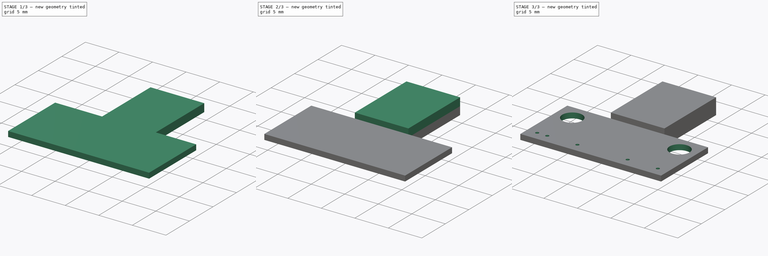
[diagram: build sequence overview — one tinted view per stage of 3, left to right]
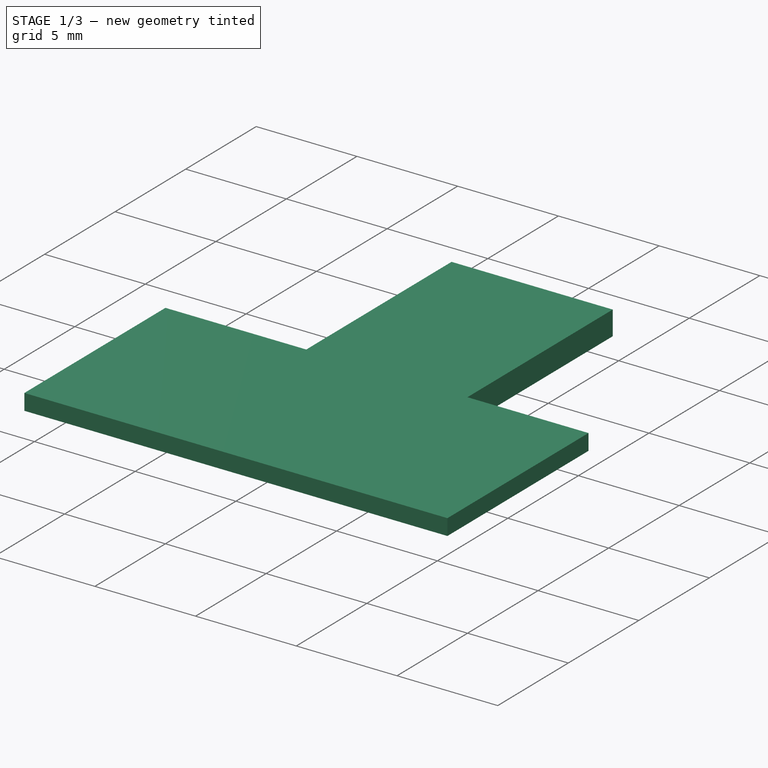
[diagram: stage 1 of 3 — iso view after this stage's code; geometry added in this stage tinted green]
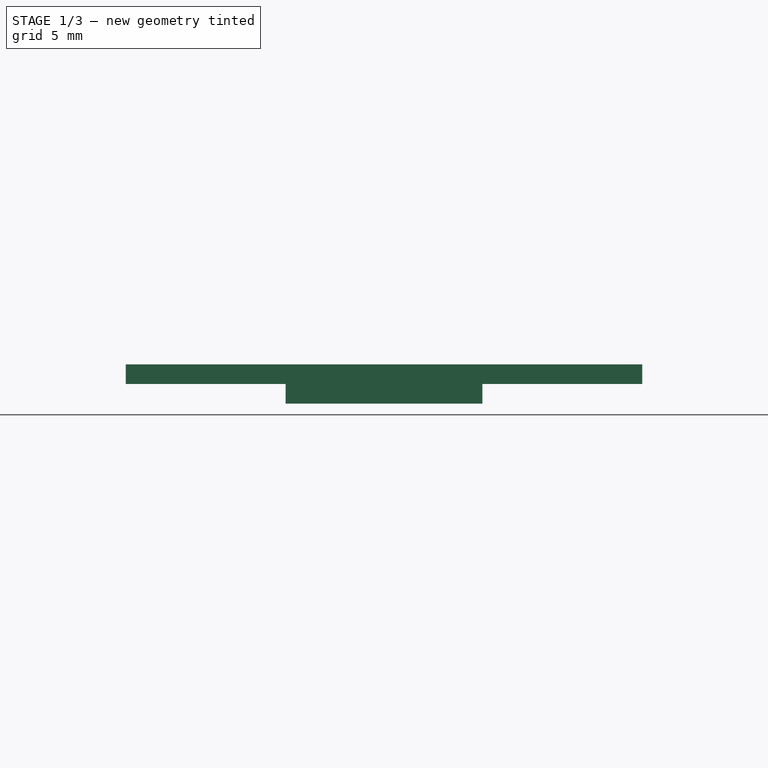
[diagram: stage 1 of 3 — front view after this stage's code; geometry added in this stage tinted green]
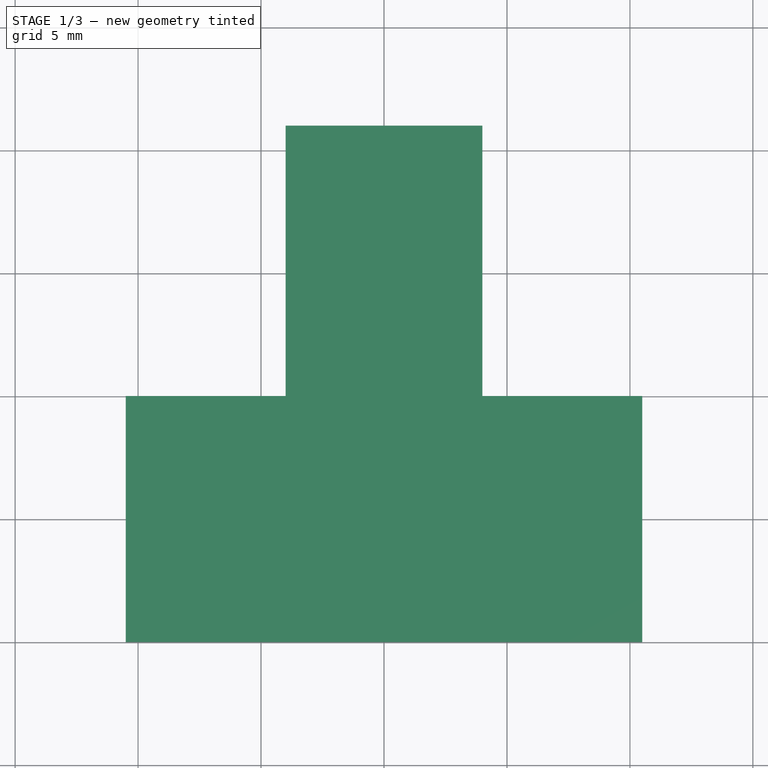
[diagram: stage 1 of 3 — top view after this stage's code; geometry added in this stage tinted green]
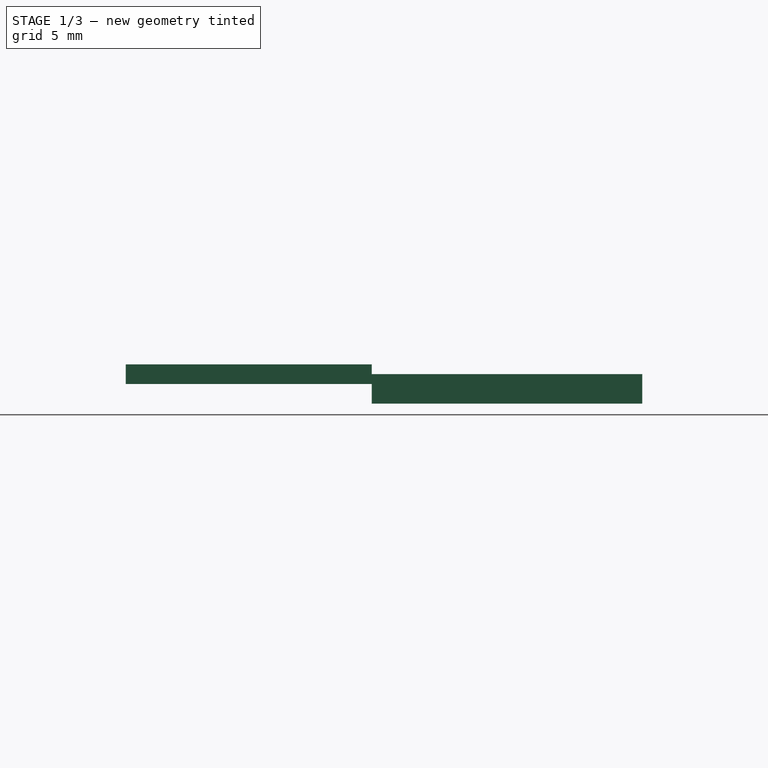
[diagram: stage 1 of 3 — right view after this stage's code; geometry added in this stage tinted green]
FCSTD DOCUMENT  (FreeCAD 0.19R24276 (Git))
Label: pcb_usb_c
License: All rights reserved
LicenseURL: http://en.wikipedia.org/wiki/All_rights_reserved
objects: Sketcher::SketchObject×5, PartDesign::Pad×3, PartDesign::Pocket×1, PartDesign::Hole×1, PartDesign::Body×1
note: 16 computed .brp shape members not serialized (recipe doc carries the construction recipe); baked Part::Feature solids carry a one-line shape summary decoded from their .brp

FEATURE [Sketcher::SketchObject] Sketch  label="pcb"
  FullyConstrained = true
  MapMode = 5
  Support = -> [XY_Plane]
  sketch-geometry (4):
    g0: LineSegment StartX=-10.5 StartY=5 StartZ=0 EndX=10.5 EndY=5 EndZ=0
    g1: LineSegment StartX=10.5 StartY=5 StartZ=0 EndX=10.5 EndY=-5 EndZ=0
    g2: LineSegment StartX=10.5 StartY=-5 StartZ=0 EndX=-10.5 EndY=-5 EndZ=0
    g3: LineSegment StartX=-10.5 StartY=-5 StartZ=0 EndX=-10.5 EndY=5 EndZ=0
  constraints (12):
    c: Coincident(g0,g1)
    c: Coincident(g1,g2)
    c: Coincident(g2,g3)
    c: Coincident(g3,g0)
    c: Horizontal(g0)
    c: Horizontal(g2)
    c: Vertical(g1)
    c: Vertical(g3)
    c: DistanceX(g-1,g0) = 10.5
    c: DistanceX(g0,g-1) = 10.5
    c: DistanceY(g-1,g0) = 5
    c: DistanceY(g2,g-1) = 5
FEATURE [PartDesign::Pad] Pad  label="plane_pad"
  Direction = (1,1,1)
  Length = 0.8
  Length2 = 100
  Profile = -> Sketch
  Type = 0
FEATURE [Sketcher::SketchObject] Sketch001  label="connector_usb_c_bottom"
  FullyConstrained = true
  MapMode = 5
  Placement = pos=(0,5,0) rot=(0,0.707107,0.707107;3.14159rad)
  Support = -> [Pad]
  sketch-geometry (4):
    g0: LineSegment StartX=-4 StartY=0.4 StartZ=0 EndX=4 EndY=0.4 EndZ=0
    g1: LineSegment StartX=4 StartY=0.4 StartZ=0 EndX=4 EndY=-0.8 EndZ=0
    g2: LineSegment StartX=4 StartY=-0.8 StartZ=0 EndX=-4 EndY=-0.8 EndZ=0
    g3: LineSegment StartX=-4 StartY=-0.8 StartZ=0 EndX=-4 EndY=0.4 EndZ=0
  constraints (12):
    c: Coincident(g0,g1)
    c: Coincident(g1,g2)
    c: Coincident(g2,g3)
    c: Coincident(g3,g0)
    c: Horizontal(g0)
    c: Horizontal(g2)
    c: Vertical(g1)
    c: Vertical(g3)
    c: DistanceY(g2,g-1) = 0.8
    c: DistanceY(g-1,g0) = 0.4
    c: DistanceX(g-1,g1) = 4
    c: DistanceX(g2,g-1) = 4
FEATURE [PartDesign::Pad] Pad001  label="connector_usb_c_bottom_pad"
  BaseFeature = -> Pad
  Direction = (1,1,1)
  Length = 11
  Length2 = 100
  Profile = -> Sketch001
  Type = 0
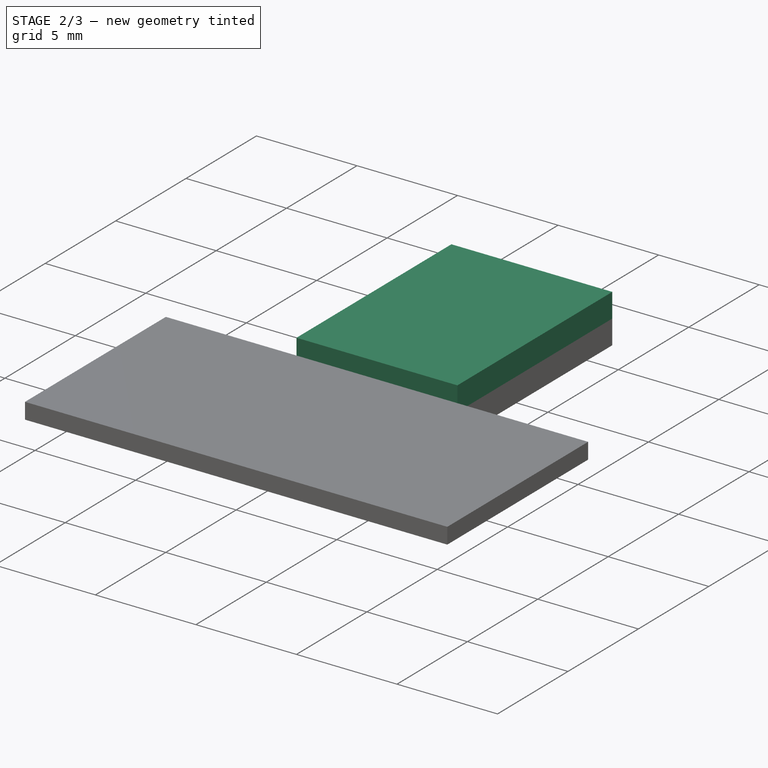
[diagram: stage 2 of 3 — iso view after this stage's code; geometry added in this stage tinted green]
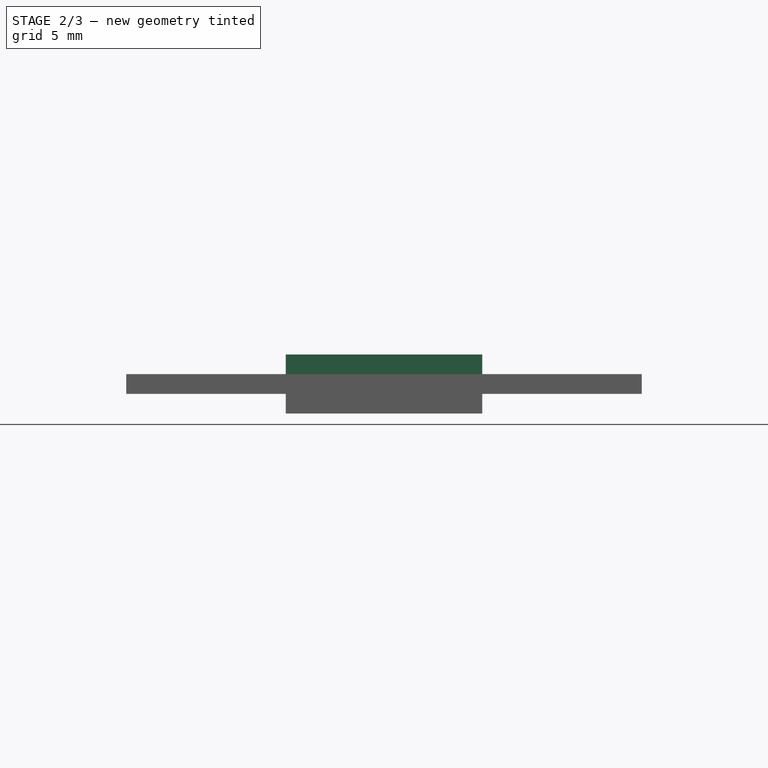
[diagram: stage 2 of 3 — front view after this stage's code; geometry added in this stage tinted green]
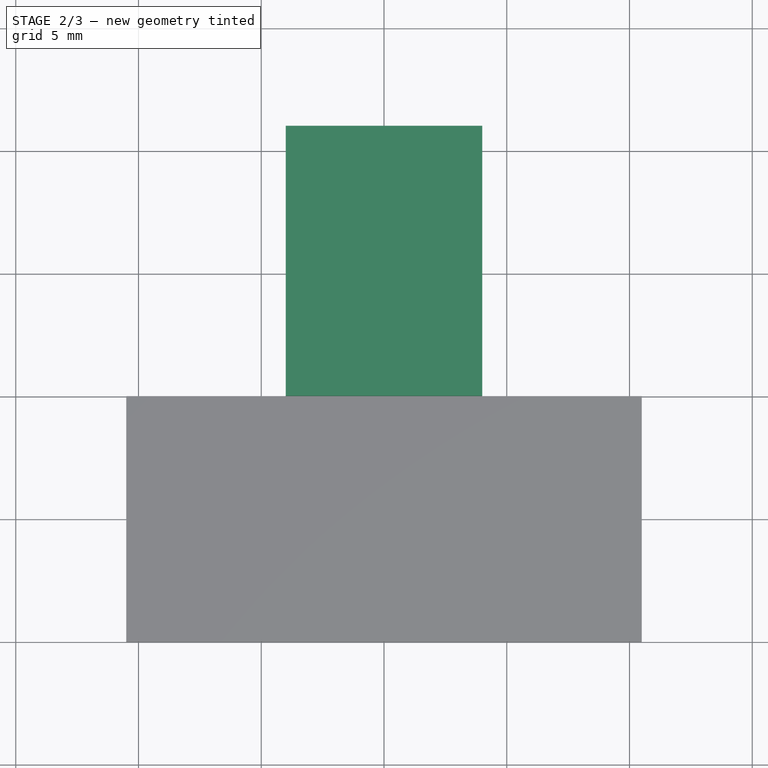
[diagram: stage 2 of 3 — top view after this stage's code; geometry added in this stage tinted green]
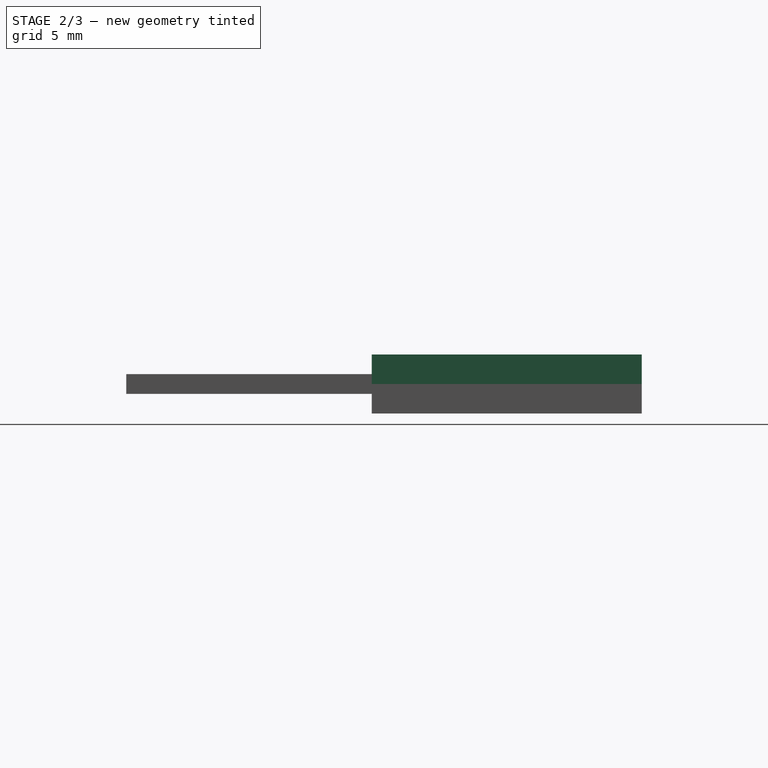
[diagram: stage 2 of 3 — right view after this stage's code; geometry added in this stage tinted green]
FEATURE [Sketcher::SketchObject] Sketch002  label="connector_usb_c_top"
  FullyConstrained = true
  MapMode = 5
  Placement = pos=(0,5,0) rot=(0,0.707107,0.707107;3.14159rad)
  Support = -> [Pad001]
  sketch-geometry (4):
    g0: LineSegment StartX=-4 StartY=1.6 StartZ=0 EndX=4 EndY=1.6 EndZ=0
    g1: LineSegment StartX=4 StartY=1.6 StartZ=0 EndX=4 EndY=0.4 EndZ=0
    g2: LineSegment StartX=4 StartY=0.4 StartZ=0 EndX=-4 EndY=0.4 EndZ=0
    g3: LineSegment StartX=-4 StartY=0.4 StartZ=0 EndX=-4 EndY=1.6 EndZ=0
  constraints (12):
    c: Coincident(g0,g1)
    c: Coincident(g1,g2)
    c: Coincident(g2,g3)
    c: Coincident(g3,g0)
    c: Horizontal(g0)
    c: Horizontal(g2)
    c: Vertical(g1)
    c: Vertical(g3)
    c: DistanceY(g-1,g2) = 0.4
    c: DistanceX(g0,g-1) = 4
    c: DistanceX(g-1,g0) = 4
    c: DistanceY(g3,g3) = 1.2
FEATURE [PartDesign::Pad] Pad002  label="connector_usb_c_top_pad"
  BaseFeature = -> Pad001
  Direction = (1,1,1)
  Length = 11
  Length2 = 100
  Profile = -> Sketch002
  Type = 0
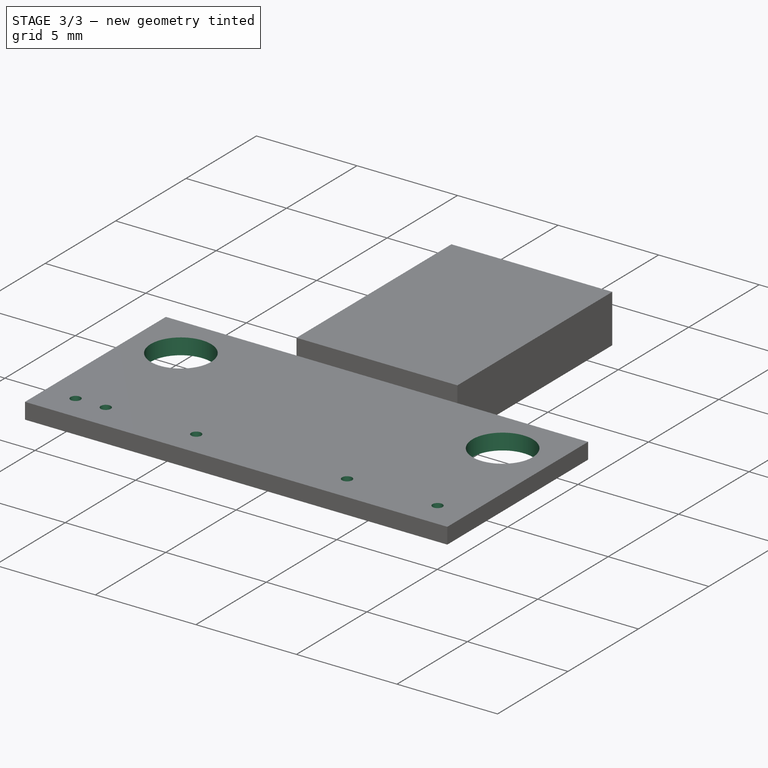
[diagram: stage 3 of 3 — iso view after this stage's code; geometry added in this stage tinted green]
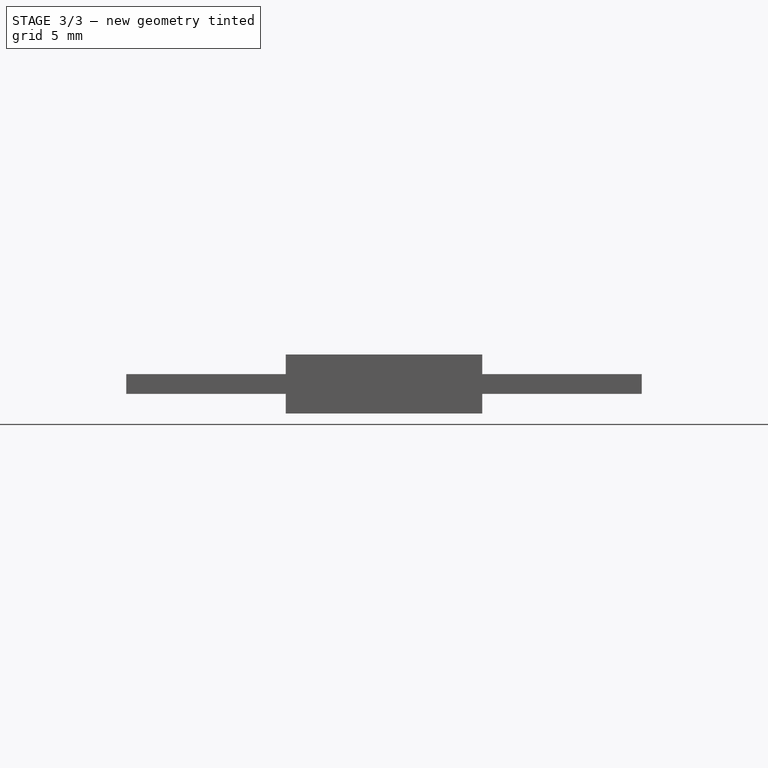
[diagram: stage 3 of 3 — front view after this stage's code; geometry added in this stage tinted green]
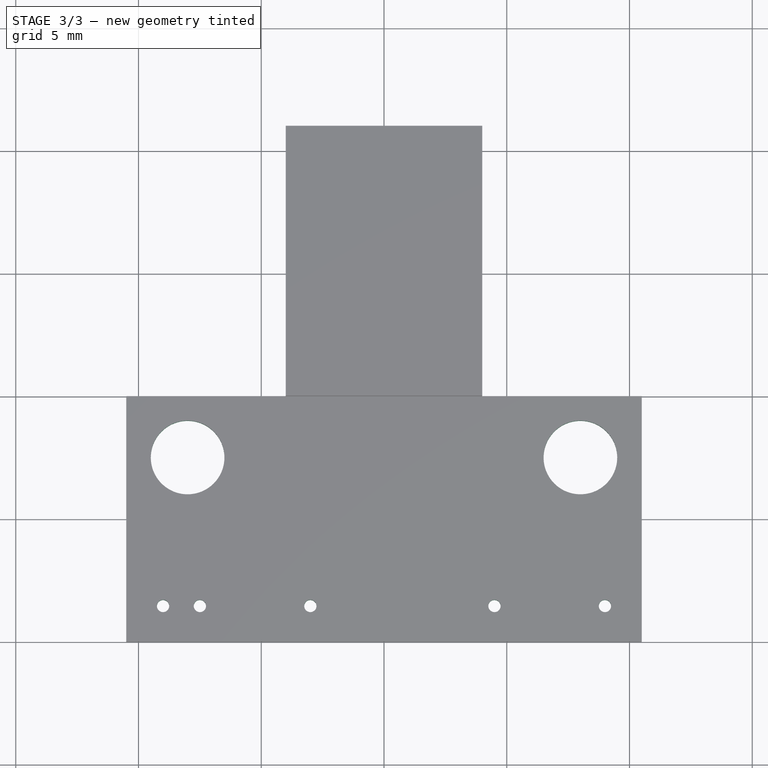
[diagram: stage 3 of 3 — top view after this stage's code; geometry added in this stage tinted green]
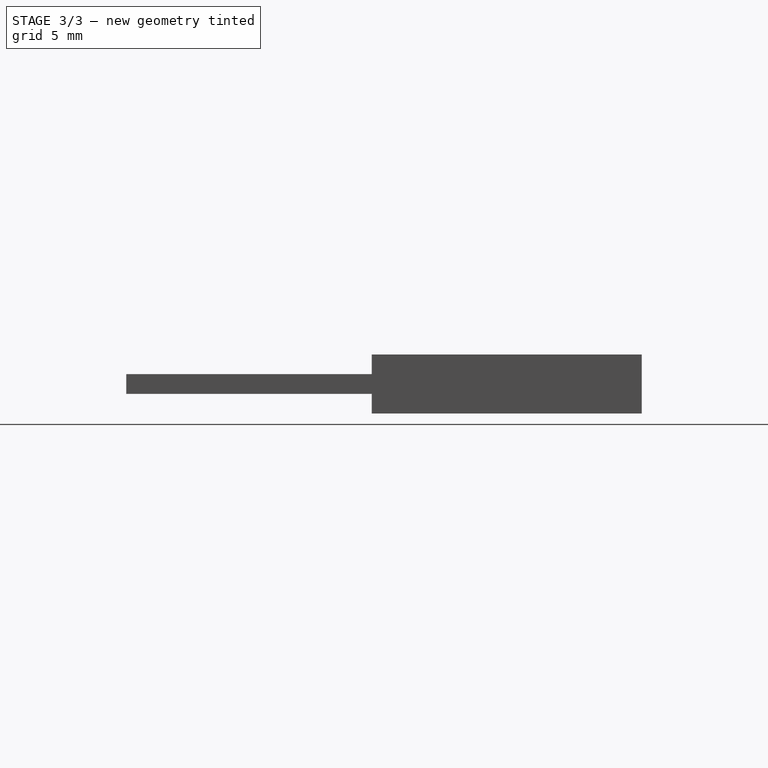
[diagram: stage 3 of 3 — right view after this stage's code; geometry added in this stage tinted green]
FEATURE [Sketcher::SketchObject] Sketch003  label="hole"
  FullyConstrained = true
  MapMode = 5
  Placement = pos=(0,0,0.8) rot=(0,0,1;0rad)
  Support = -> [Pad002]
  sketch-geometry (5):
    g0: Circle CenterX=-9 CenterY=-3.55 CenterZ=0 NormalX=0 NormalY=0 NormalZ=1 AngleXU=0 Radius=0.25
    g1: Circle CenterX=-7.5 CenterY=-3.55 CenterZ=0 NormalX=0 NormalY=0 NormalZ=1 AngleXU=0 Radius=0.25
    g2: Circle CenterX=-3 CenterY=-3.55 CenterZ=0 NormalX=0 NormalY=0 NormalZ=1 AngleXU=0 Radius=0.25
    g3: Circle CenterX=4.5 CenterY=-3.55 CenterZ=0 NormalX=0 NormalY=0 NormalZ=1 AngleXU=0 Radius=0.25
    g4: Circle CenterX=9 CenterY=-3.55 CenterZ=0 NormalX=0 NormalY=0 NormalZ=1 AngleXU=0 Radius=0.25
  constraints (15):
    c: Radius(g0) = 0.25
    c: Radius(g1) = 0.25
    c: Radius(g2) = 0.25
    c: Radius(g3) = 0.25
    c: Radius(g4) = 0.25
    c: DistanceX(g0,g-1) = 9
    c: DistanceX(g0,g1) = 1.5
    c: DistanceY(g0,g-1) = 3.55
    c: DistanceY(g1,g-1) = 3.55
    c: DistanceY(g2,g-1) = 3.55
    c: DistanceX(g0,g2) = 6
    c: DistanceX(g-1,g4) = 9
    c: DistanceY(g4,g-1) = 3.55
    c: DistanceY(g3,g-1) = 3.55
    c: DistanceX(g3,g4) = 4.5
FEATURE [PartDesign::Pocket] Pocket  label="hole_pocket"
  BaseFeature = -> Pad002
  Length = 3
  Length2 = 100
  Profile = -> Sketch003
  Type = 0
FEATURE [Sketcher::SketchObject] Sketch004  label="mounting_hole"
  FullyConstrained = true
  MapMode = 5
  Placement = pos=(0,0,0.8) rot=(0,0,1;0rad)
  Support = -> [Pocket]
  sketch-geometry (2):
    g0: Circle CenterX=-8 CenterY=2.5 CenterZ=0 NormalX=0 NormalY=0 NormalZ=1 AngleXU=0 Radius=1.5
    g1: Circle CenterX=8 CenterY=2.5 CenterZ=0 NormalX=0 NormalY=0 NormalZ=1 AngleXU=0 Radius=1.5
  constraints (6):
    c: Radius(g0) = 1.5
    c: Radius(g1) = 1.5
    c: DistanceX(g0,g-1) = 8
    c: DistanceX(g-1,g1) = 8
    c: DistanceY(g-1,g1) = 2.5
    c: DistanceY(g-1,g0) = 2.5
FEATURE [PartDesign::Hole] Hole  label="mounting_hole_hole"
  BaseFeature = -> Pocket
  Depth = 25
  DepthType = 1
  Diameter = 3
  DrillForDepth = false
  DrillPoint = 1
  DrillPointAngle = 118
  HoleCutCountersinkAngle = 90
  HoleCutCustomValues = false
  HoleCutDepth = 0
  HoleCutDiameter = 6.1
  HoleCutType = 0
  ModelActualThread = false
  Profile = -> Sketch004
  Tapered = false
  TaperedAngle = 90
  ThreadAngle = 0
  ThreadClass = 0
  ThreadCutOffInner = 0
  ThreadCutOffOuter = 0
  ThreadDirection = 0
  ThreadFit = 0
  ThreadPitch = 0
  ThreadSize = 0
  ThreadType = 0
  Threaded = false
FEATURE [PartDesign::Body] Body
  Group = -> [Sketch,Pad,Sketch001,Pad001,Sketch002,Pad002,Sketch003,Pocket,Sketch004,Hole]
  Origin = -> Origin
  Tip = -> Hole
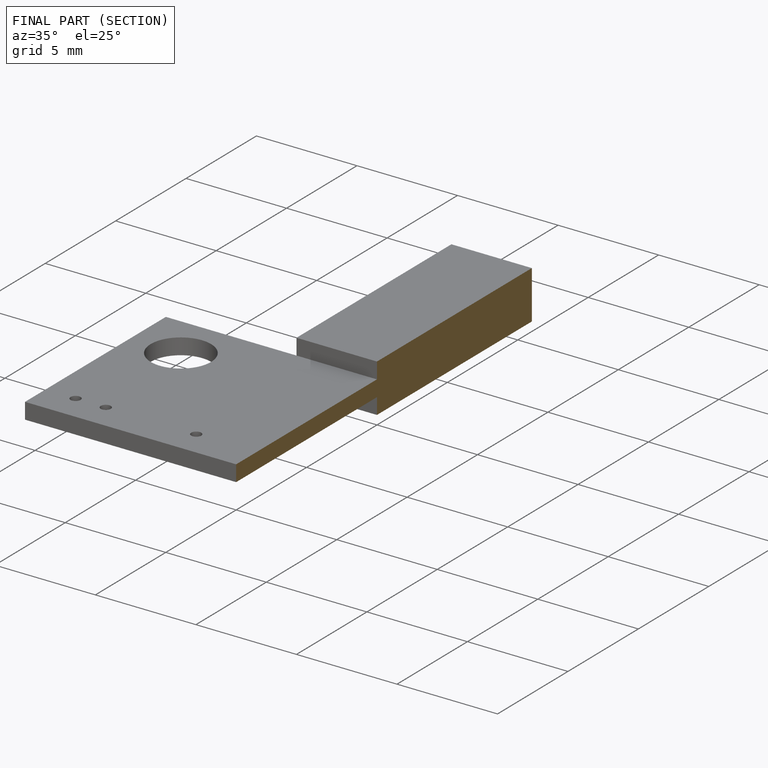
[diagram: finished part — half-section view (interior)]
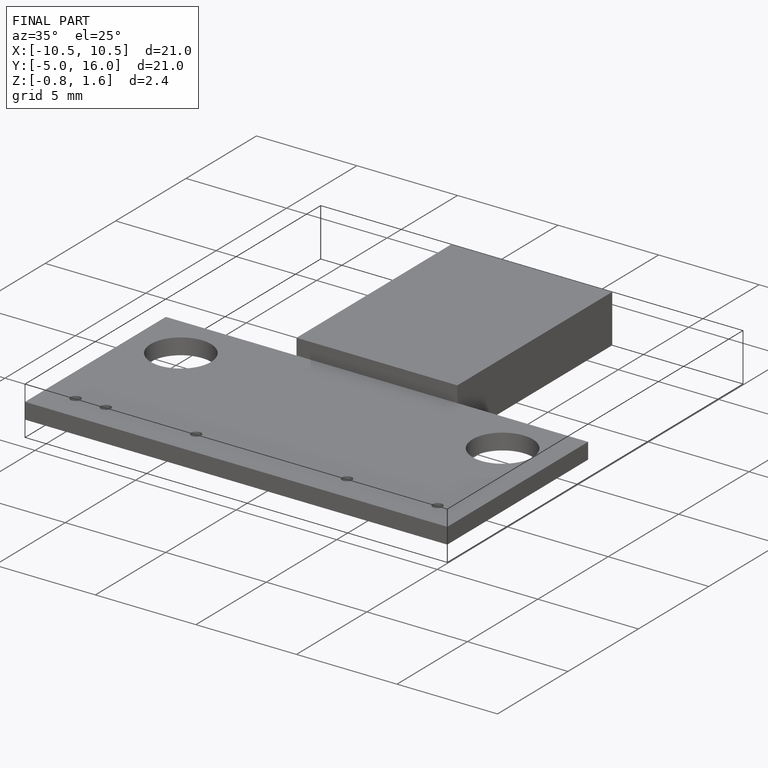
[diagram: finished part — iso view with bounding-box wireframe]
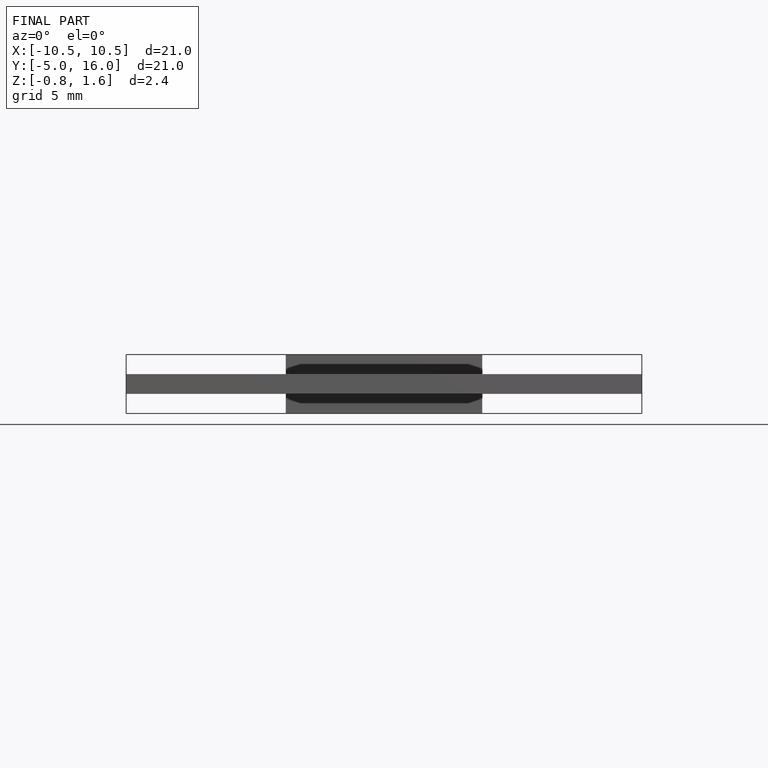
[diagram: finished part — front view with bounding-box wireframe]
